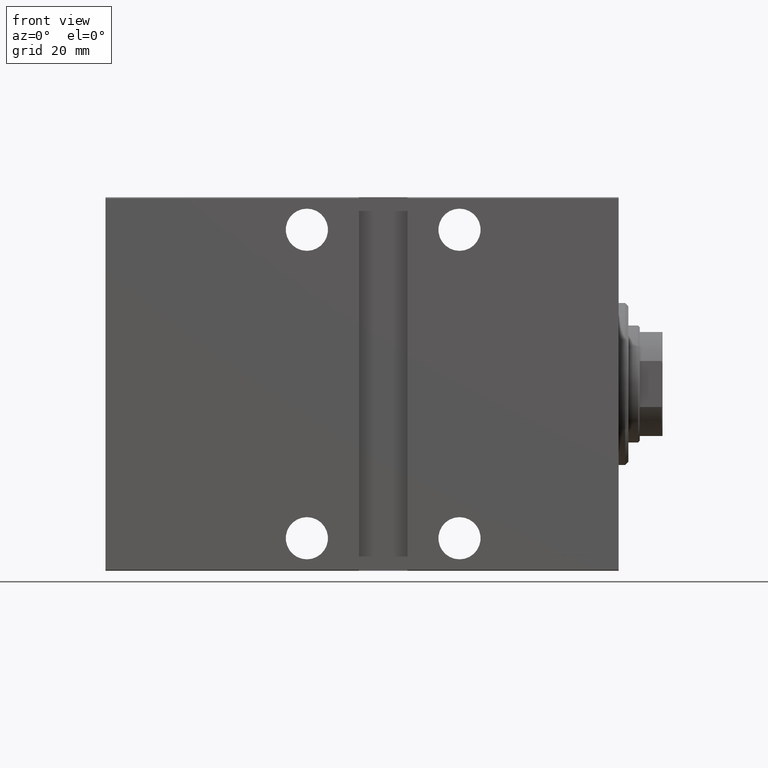
[diagram: clean part render]
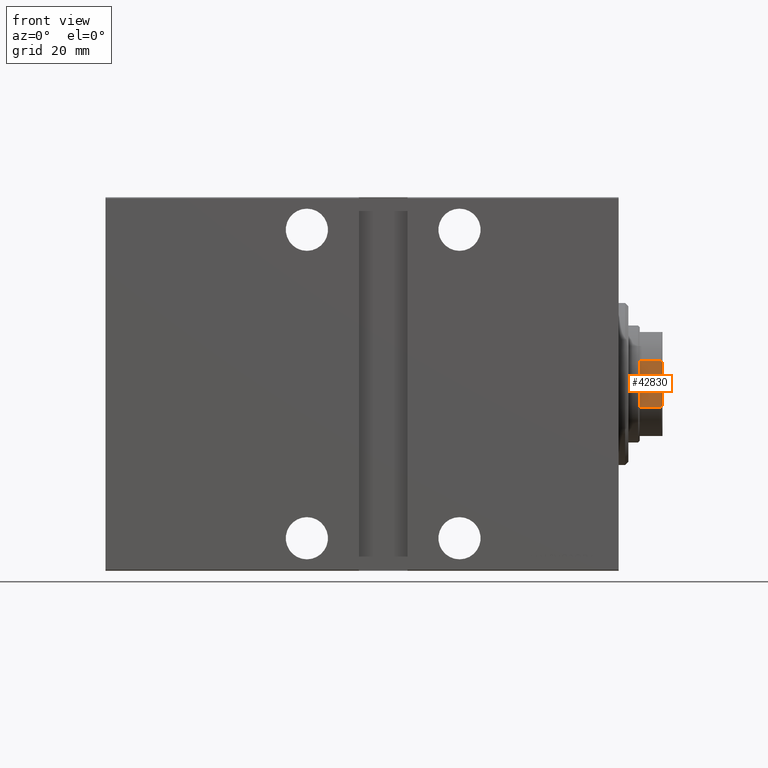
[diagram: same view with one face highlighted and labeled with its STEP entity id]
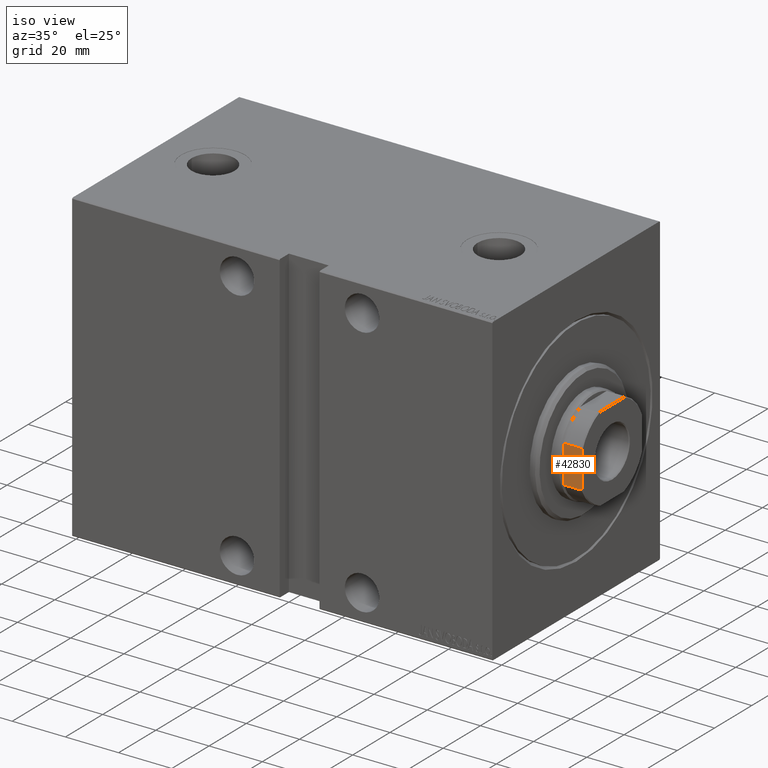
[diagram: same view with one face highlighted and labeled with its STEP entity id]
A machine part, front view. The second image highlights one B-rep face of the part: STEP entity #42830.
A second angle (iso view) of the same face is appended — the face is thin or edge-on in the first view.
In plain terms, the highlighted planar face has unit normal (-0, 1, -0).
Its self-contained STEP definition (entity closure, byte-faithful):
#106 = VECTOR ( 'NONE', #22468, 1000.000000000000000 ) ;
#259 = LINE ( 'NONE', #13765, #41469 ) ;
#600 = VERTEX_POINT ( 'NONE', #33278 ) ;
#1495 = DIRECTION ( 'NONE',  ( 0.000000000000000000, -0.000000000000000000, 1.000000000000000000 ) ) ;
#2035 = ORIENTED_EDGE ( 'NONE', *, *, #30114, .F. ) ;
#2166 = AXIS2_PLACEMENT_3D ( 'NONE', #35164, #31850, #1495 ) ;
#4266 = EDGE_LOOP ( 'NONE', ( #40751, #30847, #2035, #26864, #15484, #33955 ) ) ;
#5259 = PLANE ( 'NONE',  #2166 ) ;
#8640 = CARTESIAN_POINT ( 'NONE',  ( 7.088723439378908253, -16.00000000000000355, 153.7000000000000171 ) ) ;
#9871 = EDGE_CURVE ( 'NONE', #25931, #30315, #24931, .T. ) ;
#10310 = CARTESIAN_POINT ( 'NONE',  ( -6.311893535223781271, -16.00000000000000000, 154.0000000000000284 ) ) ;
#10735 = LINE ( 'NONE', #37546, #42223 ) ;
#12186 = CARTESIAN_POINT ( 'NONE',  ( 6.831413176973255119, -16.00000000000000355, 153.8042286450461802 ) ) ;
#12200 = LINE ( 'NONE', #14876, #24915 ) ;
#13765 = CARTESIAN_POINT ( 'NONE',  ( -15.99999999999999645, -16.00000000000000000, 154.0000000000000284 ) ) ;
#14218 = EDGE_CURVE ( 'NONE', #30790, #38149, #12200, .T. ) ;
#14876 = CARTESIAN_POINT ( 'NONE',  ( -7.088723439378908253, -16.00000000000000355, -0.001000000000001000089 ) ) ;
#15484 = ORIENTED_EDGE ( 'NONE', *, *, #14218, .F. ) ;
#17155 = DIRECTION ( 'NONE',  ( 1.000000000000000000, 0.000000000000000000, 0.000000000000000000 ) ) ;
#18328 = FACE_OUTER_BOUND ( 'NONE', #4266, .T. ) ;
#22468 = DIRECTION ( 'NONE',  ( -0.000000000000000000, -0.000000000000000000, 1.000000000000000000 ) ) ;
#22833 = B_SPLINE_CURVE_WITH_KNOTS ( 'NONE', 3,
 ( #8640, #12186, #39219, #28581 ),
 .UNSPECIFIED., .F., .F.,
 ( 4, 4 ),
 ( 0.000000000000000000, 0.0008327452791758734691 ),
 .UNSPECIFIED. ) ;
#23824 = CARTESIAN_POINT ( 'NONE',  ( -6.831413176973256007, -16.00000000000000000, 153.8042286450461802 ) ) ;
#23848 = CARTESIAN_POINT ( 'NONE',  ( -7.088723439378908253, -16.00000000000000355, 147.0000000000000000 ) ) ;
#24915 = VECTOR ( 'NONE', #38586, 1000.000000000000000 ) ;
#24931 = LINE ( 'NONE', #35331, #106 ) ;
#25931 = VERTEX_POINT ( 'NONE', #42724 ) ;
#26402 = EDGE_CURVE ( 'NONE', #30790, #25931, #10735, .T. ) ;
#26864 = ORIENTED_EDGE ( 'NONE', *, *, #42991, .T. ) ;
#28581 = CARTESIAN_POINT ( 'NONE',  ( 6.311893535223763507, -16.00000000000000000, 154.0000000000000284 ) ) ;
#30114 = EDGE_CURVE ( 'NONE', #32172, #600, #259, .T. ) ;
#30315 = VERTEX_POINT ( 'NONE', #43198 ) ;
#30790 = VERTEX_POINT ( 'NONE', #23848 ) ;
#30847 = ORIENTED_EDGE ( 'NONE', *, *, #42288, .T. ) ;
#31320 = B_SPLINE_CURVE_WITH_KNOTS ( 'NONE', 3,
 ( #10310, #34668, #23824, #40884 ),
 .UNSPECIFIED., .F., .F.,
 ( 4, 4 ),
 ( 0.000000000000000000, 0.0008327452791758570977 ),
 .UNSPECIFIED. ) ;
#31850 = DIRECTION ( 'NONE',  ( 0.000000000000000000, 1.000000000000000000, 0.000000000000000000 ) ) ;
#32120 = CARTESIAN_POINT ( 'NONE',  ( -7.088723439378908253, -16.00000000000000355, 153.7000000000000171 ) ) ;
#32172 = VERTEX_POINT ( 'NONE', #38043 ) ;
#33278 = CARTESIAN_POINT ( 'NONE',  ( 6.311893535223763507, -16.00000000000000000, 154.0000000000000284 ) ) ;
#33955 = ORIENTED_EDGE ( 'NONE', *, *, #26402, .T. ) ;
#34668 = CARTESIAN_POINT ( 'NONE',  ( -6.572519770966268382, -16.00000000000000000, 153.9043578457853130 ) ) ;
#35164 = CARTESIAN_POINT ( 'NONE',  ( -15.99999999999999645, -16.00000000000000000, 154.0000000000000284 ) ) ;
#35331 = CARTESIAN_POINT ( 'NONE',  ( 7.088723439378908253, -16.00000000000000355, -0.001000000000001000089 ) ) ;
#37546 = CARTESIAN_POINT ( 'NONE',  ( -15.99999999999999645, -16.00000000000000000, 147.0000000000000284 ) ) ;
#38043 = CARTESIAN_POINT ( 'NONE',  ( -6.311893535223781271, -16.00000000000000000, 154.0000000000000284 ) ) ;
#38149 = VERTEX_POINT ( 'NONE', #32120 ) ;
#38586 = DIRECTION ( 'NONE',  ( -0.000000000000000000, -0.000000000000000000, 1.000000000000000000 ) ) ;
#39219 = CARTESIAN_POINT ( 'NONE',  ( 6.572519770966262165, -16.00000000000000000, 153.9043578457853130 ) ) ;
#40751 = ORIENTED_EDGE ( 'NONE', *, *, #9871, .T. ) ;
#40794 = DIRECTION ( 'NONE',  ( 1.000000000000000000, 0.000000000000000000, 0.000000000000000000 ) ) ;
#40884 = CARTESIAN_POINT ( 'NONE',  ( -7.088723439378908253, -16.00000000000000355, 153.7000000000000171 ) ) ;
#41469 = VECTOR ( 'NONE', #40794, 1000.000000000000000 ) ;
#42223 = VECTOR ( 'NONE', #17155, 1000.000000000000000 ) ;
#42288 = EDGE_CURVE ( 'NONE', #30315, #600, #22833, .T. ) ;
#42724 = CARTESIAN_POINT ( 'NONE',  ( 7.088723439378908253, -16.00000000000000355, 147.0000000000000000 ) ) ;
#42830 = ADVANCED_FACE ( 'NONE', ( #18328 ), #5259, .F. ) ;
#42991 = EDGE_CURVE ( 'NONE', #32172, #38149, #31320, .T. ) ;
#43198 = CARTESIAN_POINT ( 'NONE',  ( 7.088723439378908253, -16.00000000000000355, 153.7000000000000171 ) ) ;